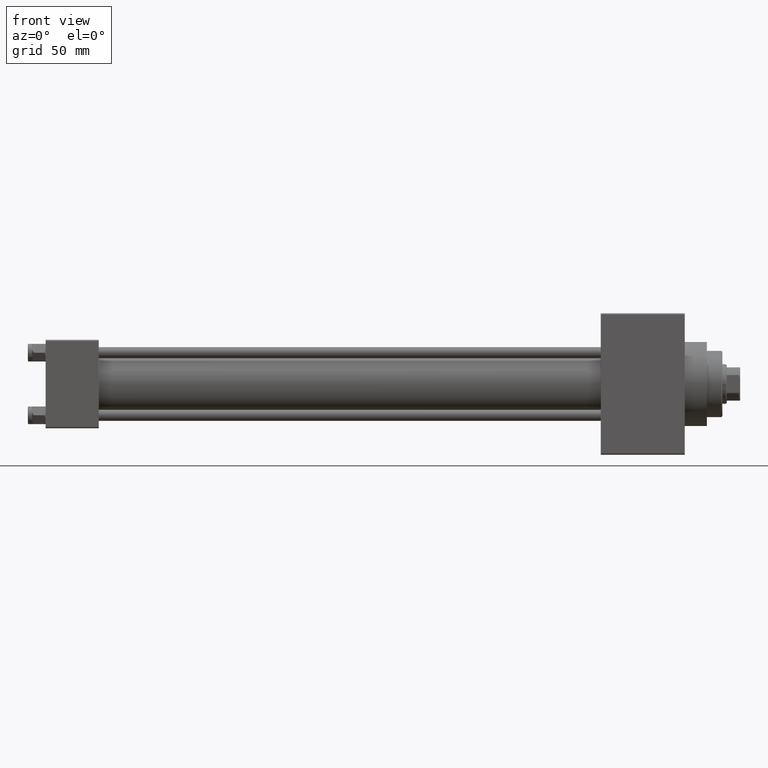
[diagram: clean part render]
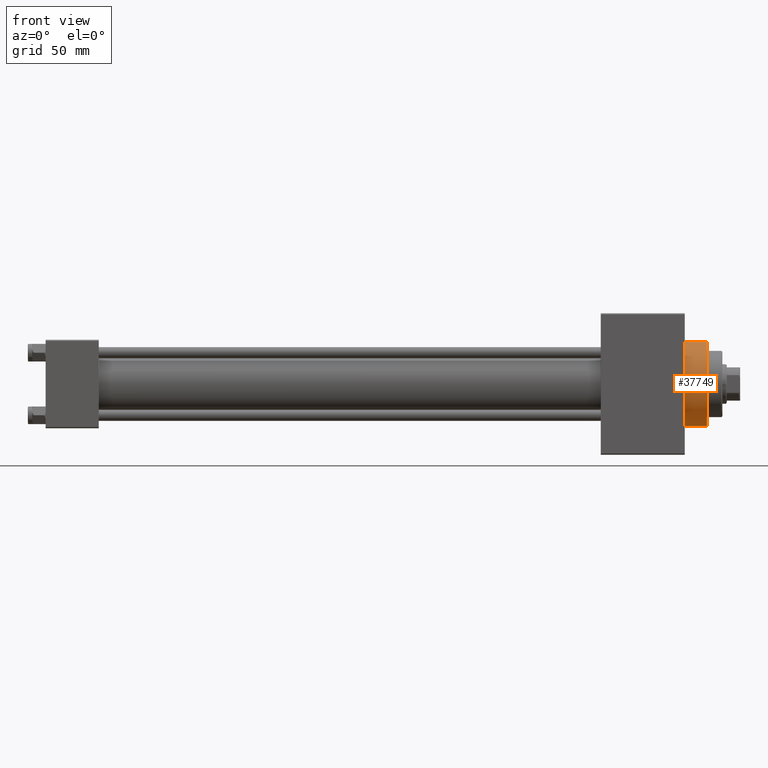
[diagram: same view with one face highlighted and labeled with its STEP entity id]
A machine part, front view. The second image highlights one B-rep face of the part: STEP entity #37749.
In plain terms, the highlighted cylindrical surface (partial cylindrical patch) has radius 19 mm, axis along (-1, -0, -0).
Its self-contained STEP definition (entity closure, byte-faithful):
#866 = CIRCLE ( 'NONE', #37364, 19.00000000000000000 ) ;
#2322 = DIRECTION ( 'NONE',  ( 0.000000000000000000, 0.000000000000000000, -1.000000000000000000 ) ) ;
#2990 = DIRECTION ( 'NONE',  ( 0.000000000000000000, 0.000000000000000000, -1.000000000000000000 ) ) ;
#4935 = LINE ( 'NONE', #19451, #29611 ) ;
#5983 = DIRECTION ( 'NONE',  ( 0.000000000000000000, 0.000000000000000000, 1.000000000000000000 ) ) ;
#6224 = DIRECTION ( 'NONE',  ( -1.000000000000000000, -0.000000000000000000, -0.000000000000000000 ) ) ;
#6379 = DIRECTION ( 'NONE',  ( 1.000000000000000000, 0.000000000000000000, 0.000000000000000000 ) ) ;
#6393 = DIRECTION ( 'NONE',  ( -1.000000000000000000, -0.000000000000000000, -0.000000000000000000 ) ) ;
#6573 = DIRECTION ( 'NONE',  ( 1.000000000000000000, 0.000000000000000000, 0.000000000000000000 ) ) ;
#9934 = CIRCLE ( 'NONE', #36557, 19.00000000000000000 ) ;
#10307 = ORIENTED_EDGE ( 'NONE', *, *, #36903, .F. ) ;
#10565 = CARTESIAN_POINT ( 'NONE',  ( 289.0000000000000000, 0.000000000000000000, 19.00000000000000000 ) ) ;
#13822 = VERTEX_POINT ( 'NONE', #39724 ) ;
#14001 = LINE ( 'NONE', #31393, #18998 ) ;
#14801 = ORIENTED_EDGE ( 'NONE', *, *, #46639, .T. ) ;
#15256 = AXIS2_PLACEMENT_3D ( 'NONE', #35505, #6224, #5983 ) ;
#16621 = ORIENTED_EDGE ( 'NONE', *, *, #46209, .F. ) ;
#18998 = VECTOR ( 'NONE', #6393, 1000.000000000000000 ) ;
#19451 = CARTESIAN_POINT ( 'NONE',  ( 299.0000000000000000, 0.000000000000000000, 19.00000000000000000 ) ) ;
#20035 = CYLINDRICAL_SURFACE ( 'NONE', #15256, 19.00000000000000000 ) ;
#22102 = ORIENTED_EDGE ( 'NONE', *, *, #31272, .T. ) ;
#24016 = EDGE_LOOP ( 'NONE', ( #10307, #16621, #22102, #14801 ) ) ;
#24067 = FACE_OUTER_BOUND ( 'NONE', #24016, .T. ) ;
#24658 = CARTESIAN_POINT ( 'NONE',  ( 299.0000000000000000, 0.000000000000000000, 0.000000000000000000 ) ) ;
#26438 = VERTEX_POINT ( 'NONE', #39215 ) ;
#27527 = DIRECTION ( 'NONE',  ( -1.000000000000000000, -0.000000000000000000, -0.000000000000000000 ) ) ;
#28024 = CARTESIAN_POINT ( 'NONE',  ( 289.0000000000000000, 0.000000000000000000, 0.000000000000000000 ) ) ;
#29611 = VECTOR ( 'NONE', #27527, 1000.000000000000000 ) ;
#31272 = EDGE_CURVE ( 'NONE', #13822, #31732, #4935, .T. ) ;
#31393 = CARTESIAN_POINT ( 'NONE',  ( 299.0000000000000000, 2.326828918379970970E-15, -19.00000000000000000 ) ) ;
#31732 = VERTEX_POINT ( 'NONE', #10565 ) ;
#35505 = CARTESIAN_POINT ( 'NONE',  ( 299.0000000000000000, 0.000000000000000000, 0.000000000000000000 ) ) ;
#36557 = AXIS2_PLACEMENT_3D ( 'NONE', #24658, #6573, #2990 ) ;
#36903 = EDGE_CURVE ( 'NONE', #38290, #26438, #14001, .T. ) ;
#37364 = AXIS2_PLACEMENT_3D ( 'NONE', #28024, #6379, #2322 ) ;
#37749 = ADVANCED_FACE ( 'NONE', ( #24067 ), #20035, .T. ) ;
#38290 = VERTEX_POINT ( 'NONE', #38595 ) ;
#38595 = CARTESIAN_POINT ( 'NONE',  ( 299.0000000000000000, 2.326828918379970970E-15, -19.00000000000000000 ) ) ;
#39215 = CARTESIAN_POINT ( 'NONE',  ( 289.0000000000000000, 2.326828918379970970E-15, -19.00000000000000000 ) ) ;
#39724 = CARTESIAN_POINT ( 'NONE',  ( 299.0000000000000000, 0.000000000000000000, 19.00000000000000000 ) ) ;
#46209 = EDGE_CURVE ( 'NONE', #13822, #38290, #9934, .T. ) ;
#46639 = EDGE_CURVE ( 'NONE', #31732, #26438, #866, .T. ) ;